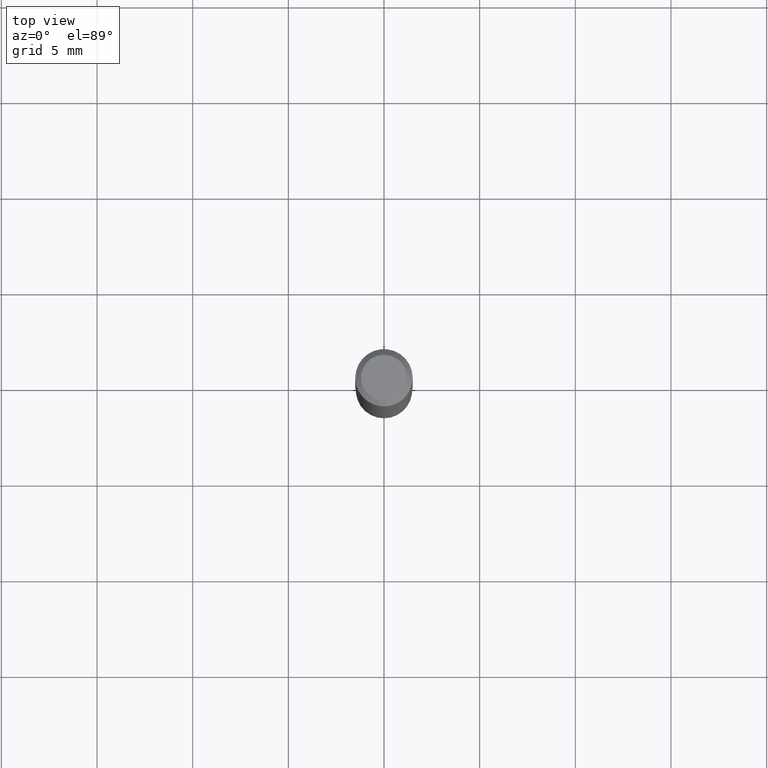
[diagram: clean part render]
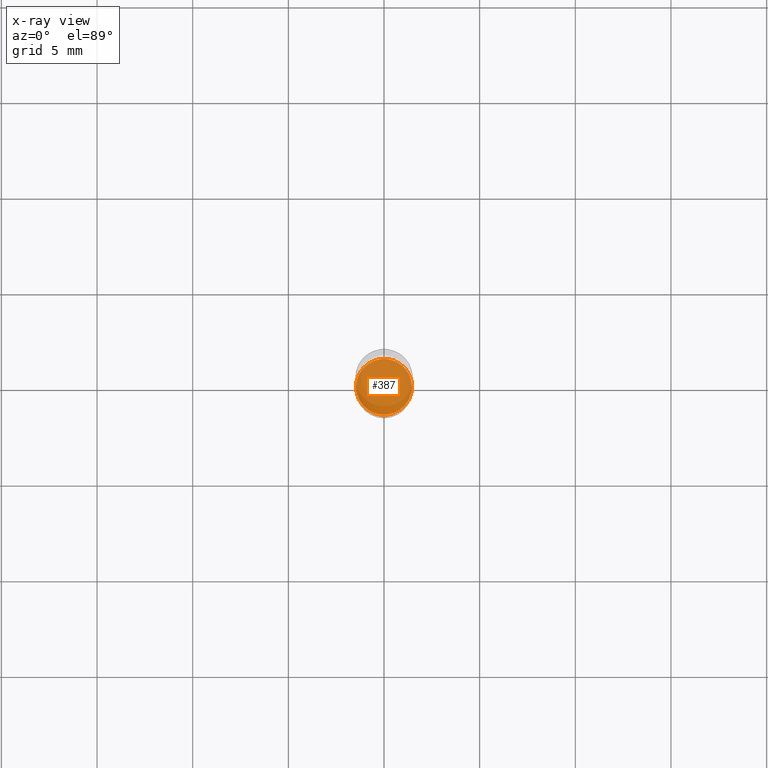
[diagram: x-ray — body ghosted, one internal face saturated and labeled with its STEP entity id]
A machine part, top view, then the same camera in x-ray: the body is ghosted and one INTERNAL B-rep face — a face not visible from any outside direction — is saturated and labeled: STEP entity #387.
In plain terms, the highlighted planar face has unit normal (-0, 0, 1).
Its self-contained STEP definition (entity closure, byte-faithful):
#17 = AXIS2_PLACEMENT_3D ( 'NONE', #172, #184, #109 ) ;
#66 = FACE_OUTER_BOUND ( 'NONE', #379, .T. ) ;
#91 = CARTESIAN_POINT ( 'NONE',  ( 0.05754999999999999699, -4.223295827464667094E-15, -1.094499999999999806 ) ) ;
#109 = DIRECTION ( 'NONE',  ( 1.000000000000000000, -6.982962677686265922E-15, 4.876176775795935793E-29 ) ) ;
#118 = EDGE_CURVE ( 'NONE', #336, #390, #414, .T. ) ;
#126 = DIRECTION ( 'NONE',  ( -2.445468806185136597E-29, 3.491481338843145583E-15, 1.000000000000000000 ) ) ;
#160 = CARTESIAN_POINT ( 'NONE',  ( 2.676565608369631794E-29, -3.821426325363822773E-15, -1.094499999999999806 ) ) ;
#172 = CARTESIAN_POINT ( 'NONE',  ( 2.676565608369631794E-29, -3.821426325363822773E-15, -1.094499999999999806 ) ) ;
#184 = DIRECTION ( 'NONE',  ( -2.438088387897960049E-29, 3.491481338843145188E-15, 1.000000000000000000 ) ) ;
#218 = CIRCLE ( 'NONE', #328, 0.05754999999999999699 ) ;
#238 = ORIENTED_EDGE ( 'NONE', *, *, #468, .F. ) ;
#250 = PLANE ( 'NONE',  #17 ) ;
#255 = DIRECTION ( 'NONE',  ( 1.000000000000000000, -6.982962677686262766E-15, 0.000000000000000000 ) ) ;
#304 = AXIS2_PLACEMENT_3D ( 'NONE', #160, #126, #349 ) ;
#328 = AXIS2_PLACEMENT_3D ( 'NONE', #406, #368, #255 ) ;
#331 = ORIENTED_EDGE ( 'NONE', *, *, #118, .F. ) ;
#336 = VERTEX_POINT ( 'NONE', #91 ) ;
#340 = CARTESIAN_POINT ( 'NONE',  ( -0.05754999999999999699, -3.409859753759773986E-15, -1.094499999999999806 ) ) ;
#349 = DIRECTION ( 'NONE',  ( 1.000000000000000000, -6.982962677686262766E-15, 0.000000000000000000 ) ) ;
#368 = DIRECTION ( 'NONE',  ( -2.445468806185136597E-29, 3.491481338843145583E-15, 1.000000000000000000 ) ) ;
#379 = EDGE_LOOP ( 'NONE', ( #331, #238 ) ) ;
#387 = ADVANCED_FACE ( 'NONE', ( #66 ), #250, .F. ) ;
#390 = VERTEX_POINT ( 'NONE', #340 ) ;
#406 = CARTESIAN_POINT ( 'NONE',  ( 2.676565608369631794E-29, -3.821426325363822773E-15, -1.094499999999999806 ) ) ;
#414 = CIRCLE ( 'NONE', #304, 0.05754999999999999699 ) ;
#468 = EDGE_CURVE ( 'NONE', #390, #336, #218, .T. ) ;